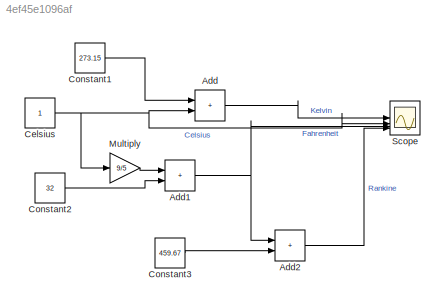
MODEL slx_4ef45e1096af
KIND model
CONFIG AbsTol = auto
CONFIG EnableMultiTasking = off
CONFIG FixedStep = auto
CONFIG MaxStep = auto
CONFIG MinStep = auto
CONFIG RelTol = 1e-3
CONFIG SampleTimeConstraint = Unconstrained
CONFIG SolverName = VariableStepAuto
CONFIG StartTime = 0.0
CONFIG StopTime = 10.0
BLOCK [Sum] Add
  IconShape = rectangular
BLOCK [Sum] Add1
  IconShape = rectangular
BLOCK [Sum] Add2
  IconShape = rectangular
BLOCK [Constant] Celsius
BLOCK [Constant] Constant1
  Value = 273.15
BLOCK [Constant] Constant2
  Value = 32
BLOCK [Constant] Constant3
  Value = 459.67
BLOCK [Gain] Multiply
  Gain = 9/5
BLOCK [Scope] Scope
  ActiveDisplayYMaximum = 619.60393890264572
  ActiveDisplayYMinimum = -125.24009518207885
  ContainerLayout = {"WindowBounds":[990,1363,521,765]}
  Floating = off
  GraphicalSettings = {"AxesScalingProperties":{"AlignXAxis":"Center","AlignYAxis":"Center","AutoScaleXAxisLimits":false,"AxesScaling":"Manual","AxesScalingNumUpdates":10,"ExpandOnly":true,"ScaleAxesLimitsAtStop":false,"XAxisDataRange":100,"YAxisDataRange":80},"DisplayProperties":{"ColorOrder":["auto","auto","auto","auto","auto","auto","auto","auto","auto","auto","auto","auto","auto","auto","auto","auto","auto","auto",...<+2279ch>
  MultipleDisplayCache = [{"MaxYLimMag":555.02875000000006,"MaxYLimReal":619.60393890264572,"MinYLimMag":0,"MinYLimReal":-125.24009518207885,"PlotAsMagnitudePhase":false,"ShowGrid":true,"ShowLegend":true,"Title":"%<SignalLabel>","YLabel":"Temperature (°)"}]
  NumInputPorts = 4
  ShowLegend = on
  ShowTimeAxisLabel = on
  Visible = on
  WasSavedAsWebScope = on
  YLabel = Temperature (°)
NET Add1:1 -> Add2:1, Scope:3
LINE Add2:1 -> Scope:4
LINE Add:1 -> Scope:1
NET Celsius:1 -> Add:2, Multiply:1, Scope:2
LINE Constant1:1 -> Add:1
LINE Constant2:1 -> Add1:2
LINE Constant3:1 -> Add2:2
LINE Multiply:1 -> Add1:1
note: NET lines group one-source signal fan-out (src -> all destinations, sorted); 1:1 wires keep LINE
